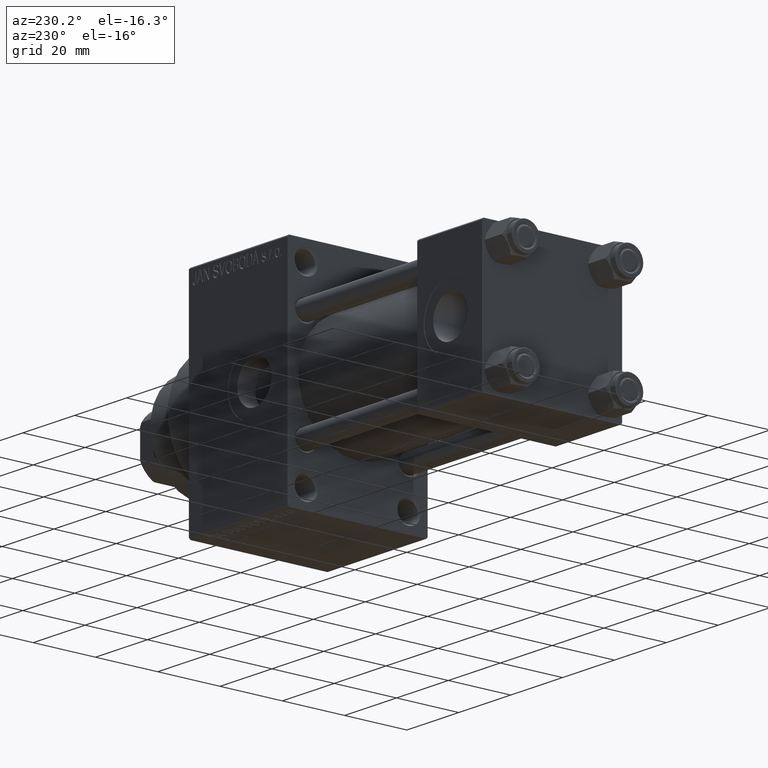
[diagram: clean part render]
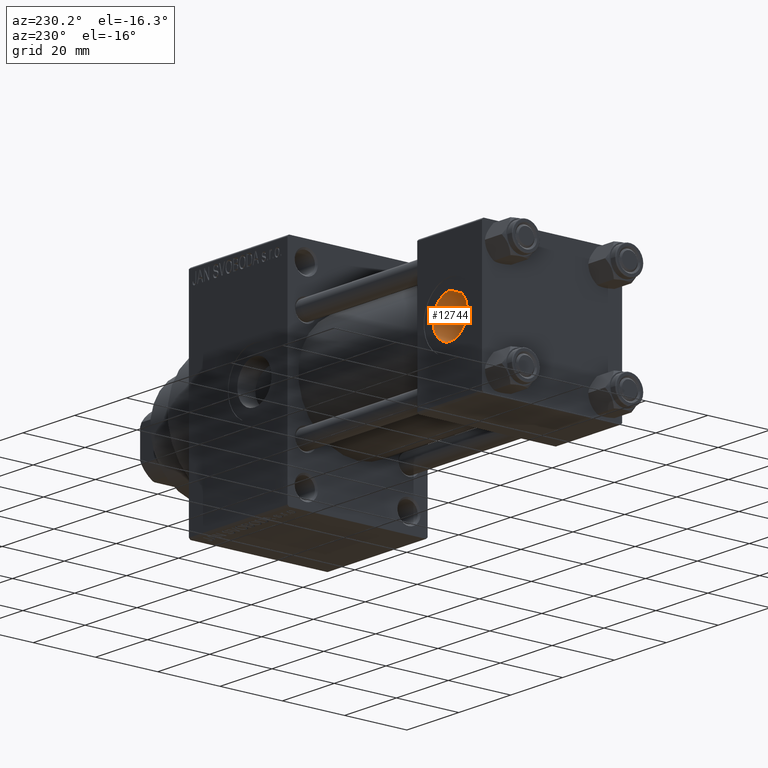
[diagram: same view with one face highlighted and labeled with its STEP entity id]
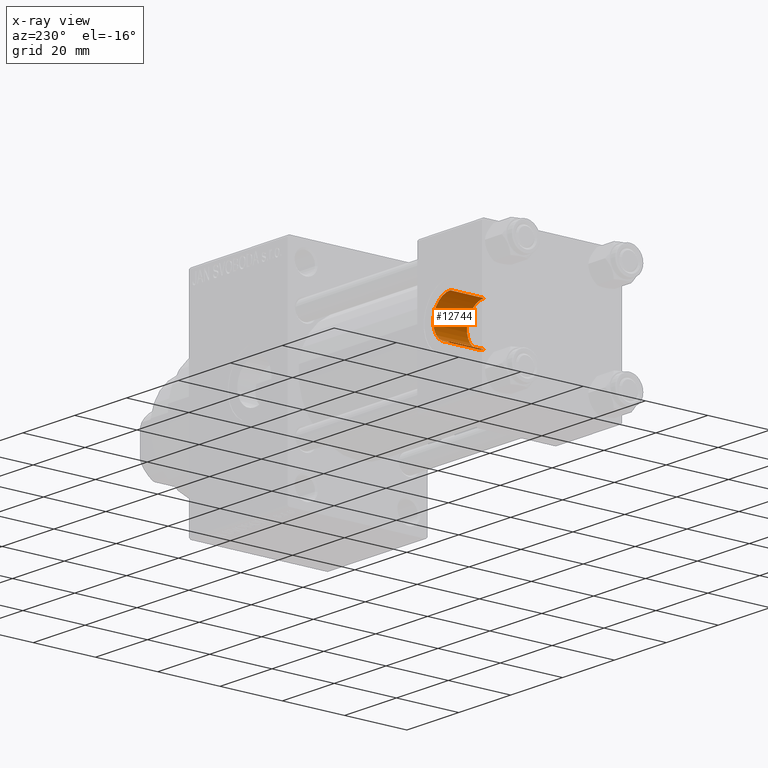
[diagram: x-ray of the same camera — body ghosted, the highlighted face saturated]
A machine part, auxiliary view. The second image highlights one B-rep face of the part: STEP entity #12744.
The next image is the same camera in x-ray: the body ghosted, the highlighted face saturated — about 0% of this face is hidden behind the body in this view.
In plain terms, the highlighted cylindrical surface (edge-blend (fillet) strip) has radius 6.58 mm, axis along (0, 1, 0).
Its self-contained STEP definition (entity closure, byte-faithful):
#2403 = EDGE_CURVE ( 'NONE', #38164, #28772, #20147, .T. ) ;
#2666 = VERTEX_POINT ( 'NONE', #45356 ) ;
#5170 = FACE_OUTER_BOUND ( 'NONE', #24742, .T. ) ;
#5225 = CARTESIAN_POINT ( 'NONE',  ( 12.50000000000000000, 22.30000000000000071, 6.579999999999998295 ) ) ;
#5556 = CARTESIAN_POINT ( 'NONE',  ( 12.50000000000000000, 22.30000000000000071, 0.000000000000000000 ) ) ;
#7899 = VERTEX_POINT ( 'NONE', #5225 ) ;
#12744 = ADVANCED_FACE ( 'NONE', ( #5170 ), #38427, .F. ) ;
#15365 = CARTESIAN_POINT ( 'NONE',  ( 12.50000000000000000, 11.50000000000000000, -6.579999999999998295 ) ) ;
#17466 = DIRECTION ( 'NONE',  ( 0.000000000000000000, 0.000000000000000000, 1.000000000000000000 ) ) ;
#19119 = CARTESIAN_POINT ( 'NONE',  ( 12.50000000000000000, 11.43999999999999773, 0.000000000000000000 ) ) ;
#20147 = CIRCLE ( 'NONE', #20907, 6.579999999999998295 ) ;
#20907 = AXIS2_PLACEMENT_3D ( 'NONE', #19119, #32226, #35480 ) ;
#21613 = CIRCLE ( 'NONE', #24004, 6.579999999999998295 ) ;
#22299 = ORIENTED_EDGE ( 'NONE', *, *, #2403, .T. ) ;
#24004 = AXIS2_PLACEMENT_3D ( 'NONE', #5556, #43041, #17466 ) ;
#24742 = EDGE_LOOP ( 'NONE', ( #44447, #22299, #26674, #46435 ) ) ;
#26674 = ORIENTED_EDGE ( 'NONE', *, *, #48971, .T. ) ;
#27135 = CARTESIAN_POINT ( 'NONE',  ( 12.50000000000000000, 11.43999999999999773, 6.579999999999998295 ) ) ;
#28772 = VERTEX_POINT ( 'NONE', #27135 ) ;
#29181 = CARTESIAN_POINT ( 'NONE',  ( 12.50000000000000000, 11.43999999999999773, -6.579999999999998295 ) ) ;
#29645 = VECTOR ( 'NONE', #47390, 1000.000000000000000 ) ;
#31478 = DIRECTION ( 'NONE',  ( 0.000000000000000000, 0.000000000000000000, 1.000000000000000000 ) ) ;
#31482 = DIRECTION ( 'NONE',  ( -0.000000000000000000, 1.000000000000000000, -0.000000000000000000 ) ) ;
#32226 = DIRECTION ( 'NONE',  ( -0.000000000000000000, -1.000000000000000000, -0.000000000000000000 ) ) ;
#32919 = EDGE_CURVE ( 'NONE', #38164, #2666, #38430, .T. ) ;
#34635 = AXIS2_PLACEMENT_3D ( 'NONE', #46142, #42914, #31478 ) ;
#35480 = DIRECTION ( 'NONE',  ( 0.000000000000000000, 0.000000000000000000, 1.000000000000000000 ) ) ;
#38164 = VERTEX_POINT ( 'NONE', #29181 ) ;
#38427 = CYLINDRICAL_SURFACE ( 'NONE', #34635, 6.579999999999998295 ) ;
#38430 = LINE ( 'NONE', #15365, #39500 ) ;
#39500 = VECTOR ( 'NONE', #31482, 1000.000000000000000 ) ;
#42914 = DIRECTION ( 'NONE',  ( -0.000000000000000000, 1.000000000000000000, -0.000000000000000000 ) ) ;
#43041 = DIRECTION ( 'NONE',  ( 0.000000000000000000, 1.000000000000000000, 0.000000000000000000 ) ) ;
#43177 = CARTESIAN_POINT ( 'NONE',  ( 12.50000000000000000, 11.50000000000000000, 6.579999999999998295 ) ) ;
#44447 = ORIENTED_EDGE ( 'NONE', *, *, #32919, .F. ) ;
#45356 = CARTESIAN_POINT ( 'NONE',  ( 12.50000000000000000, 22.30000000000000071, -6.579999999999998295 ) ) ;
#46142 = CARTESIAN_POINT ( 'NONE',  ( 12.50000000000000000, 11.50000000000000000, 0.000000000000000000 ) ) ;
#46435 = ORIENTED_EDGE ( 'NONE', *, *, #47571, .T. ) ;
#47148 = LINE ( 'NONE', #43177, #29645 ) ;
#47390 = DIRECTION ( 'NONE',  ( -0.000000000000000000, 1.000000000000000000, -0.000000000000000000 ) ) ;
#47571 = EDGE_CURVE ( 'NONE', #7899, #2666, #21613, .T. ) ;
#48971 = EDGE_CURVE ( 'NONE', #28772, #7899, #47148, .T. ) ;